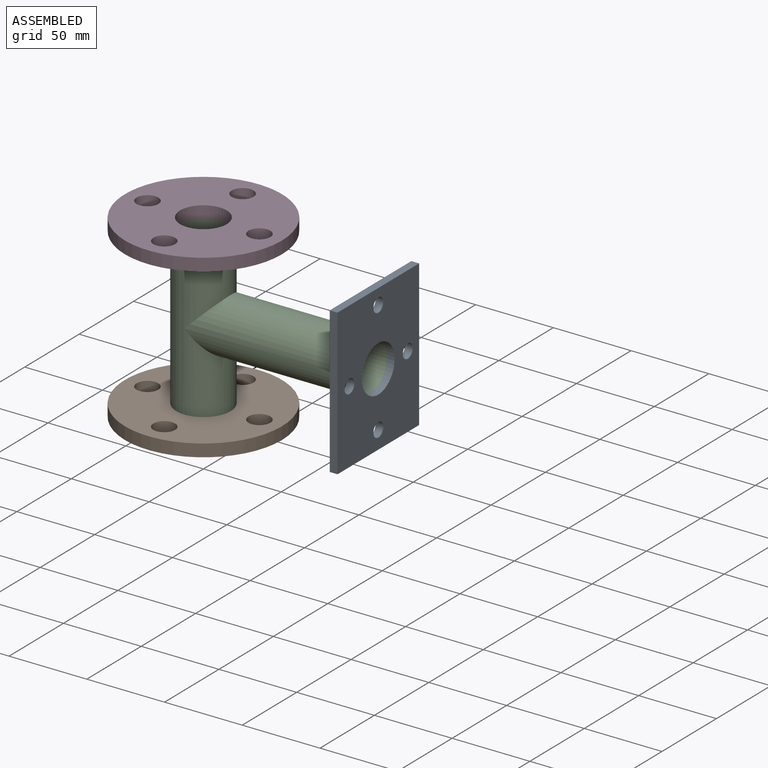
[diagram: assembled view]
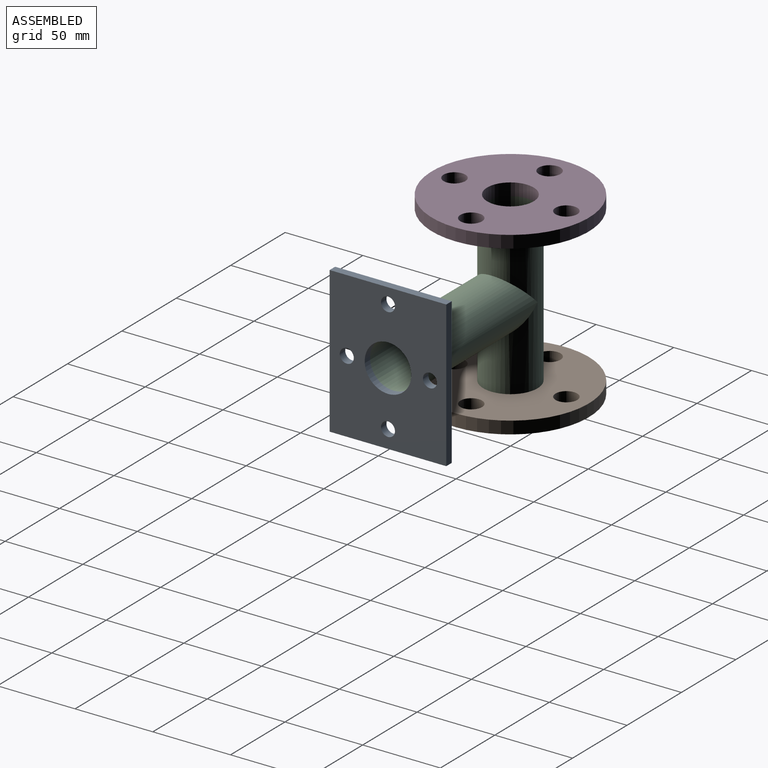
[diagram: assembled view, second angle]
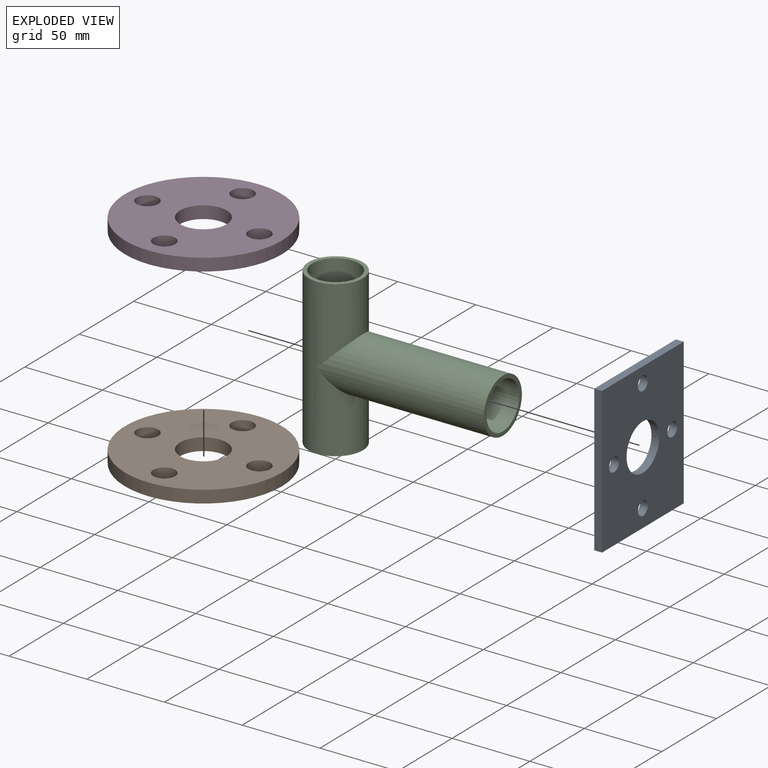
[diagram: exploded view]
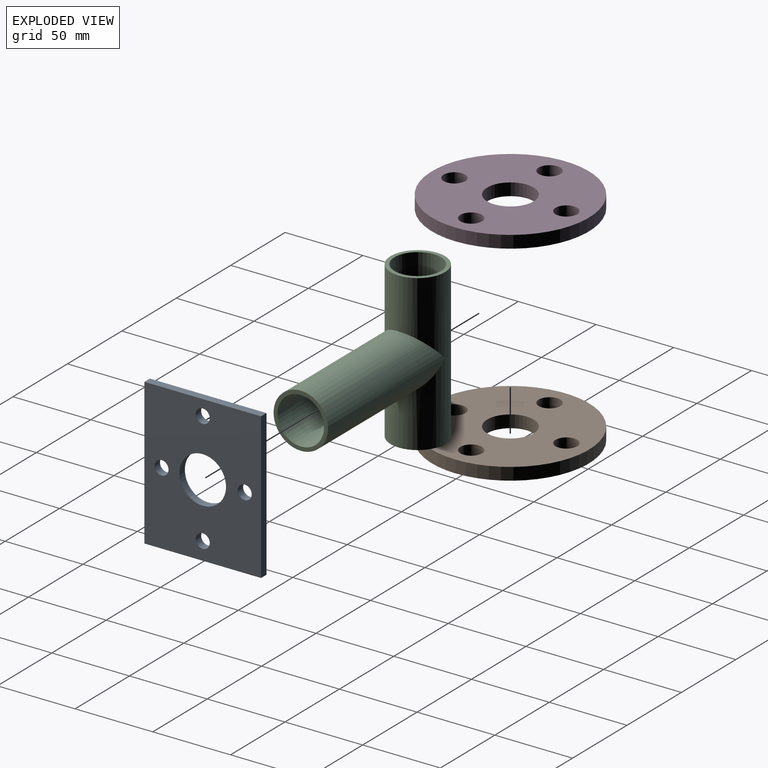
[diagram: exploded view, second angle]
ASSEMBLY  parts=4 mates=3
PART A: 11 faces, bbox 75x5x94 mm
  f0: plane 75x5mm, normal (0,0,-1), area 375mm2, adj f1,f3,f4,f5
  f1: plane 94x5mm, normal (1,0,0), area 470mm2, adj f0,f2,f4,f5
  f2: plane 75x5mm, normal (0,0,1), area 375mm2, adj f1,f3,f4,f5
  f3: plane 94x5mm, normal (-1,0,0), area 470mm2, adj f0,f2,f4,f5
  f4: plane 94x75mm, normal (0,1,0), area 6088.7mm2, adj f0,f1,f2,f3,f6,f7,f8,f9
  f5: plane 94x75mm, normal (0,-1,0), area 6088.7mm2, adj f0,f1,f2,f3,f6,f7,f8,f9
  f6: cylinder r=15mm len=30mm, axis (0,-1,0), area 471.2mm2, adj f4,f5
  f7: cylinder r=4.5mm len=9mm, axis (0,-1,0), area 141.4mm2, adj f4,f5
  f8: cylinder r=4.5mm len=9mm, axis (0,-1,0), area 141.4mm2, adj f4,f5
  f9: cylinder r=4.5mm len=9mm, axis (0,-1,0), area 141.4mm2, adj f4,f5
  f10: cylinder r=4.5mm len=9mm, axis (0,-1,0), area 141.4mm2, adj f4,f5
PART B: 8 faces, bbox 101x101x8 mm
  f0: cylinder r=50.5mm len=101mm, axis (0,0,-1), area 2538.4mm2, adj f1,f2
  f1: plane 101x101mm, normal (0,0,1), area 6689.2mm2, adj f0,f3,f4,f5,f6,f7
  f2: plane 101x101mm, normal (0,0,-1), area 6689.2mm2, adj f0,f3,f4,f5,f6,f7
  f3: cylinder r=7mm len=14mm, axis (0,0,1), area 351.9mm2, adj f1,f2
  f4: cylinder r=7mm len=14mm, axis (0,0,1), area 351.9mm2, adj f1,f2
  f5: cylinder r=7mm len=14mm, axis (0,0,1), area 351.9mm2, adj f1,f2
  f6: cylinder r=15mm len=30mm, axis (0,0,1), area 754mm2, adj f1,f2
  f7: cylinder r=7mm len=14mm, axis (0,0,1), area 351.9mm2, adj f1,f2
PART C: 9 faces, bbox 125x35x100 mm
  f0: plane 25x6.71mm, normal (1,0,0), area 118mm2, adj f6,f8
  f1: cylinder r=17.5mm len=100mm, axis (0,0,-1), area 9770.6mm2, adj f2,f3,f4
  f2: plane 35x35mm, normal (0,0,1), area 255.3mm2, adj f1,f8
  f3: plane 35x35mm, normal (0,0,-1), area 255.3mm2, adj f1,f8
  f4: cylinder r=17.5mm len=107.5mm, axis (1,0,0), area 10595.2mm2, adj f1,f5
  f5: plane 35x35mm, normal (1,0,0), area 255.3mm2, adj f4,f6
  f6: cylinder r=15mm len=95mm, axis (1,0,0), area 8895.3mm2, adj f0,f5,f7,f8
  f7: plane 25x6.71mm, normal (1,0,0), area 118mm2, adj f6,f8
  f8: cylinder r=15mm len=100mm, axis (0,0,1), area 8927.3mm2, adj f0,f2,f3,f6,f7
PART D: same geometry as B
PLACE A rot(axis=(0.71,0.71,0),180deg) t=(107.5,0,50)mm
PLACE B t=(0,0,-8)mm
PLACE C at identity fixed
PLACE D t=(0,0,100)mm
MATE fastened C.f8 <-> D.f6  axis (0,0,1) through (0,0,100)mm
MATE fastened A.f6 <-> C.f4  axis (-1,0,0) through (107.5,0,50)mm
MATE fastened B.f6 <-> C.f8  axis (0,0,1) through (0,0,0)mm
